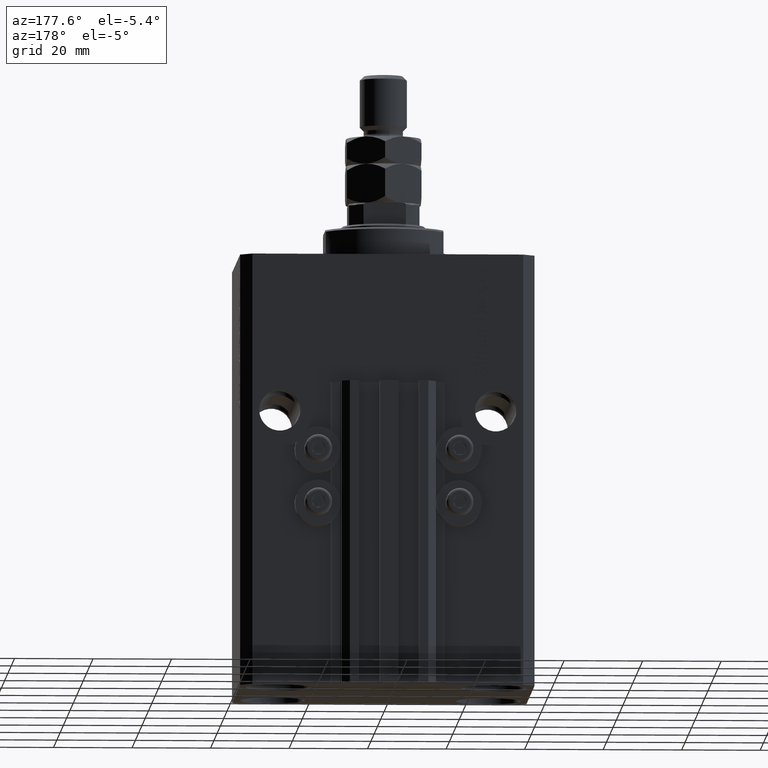
[diagram: clean part render]
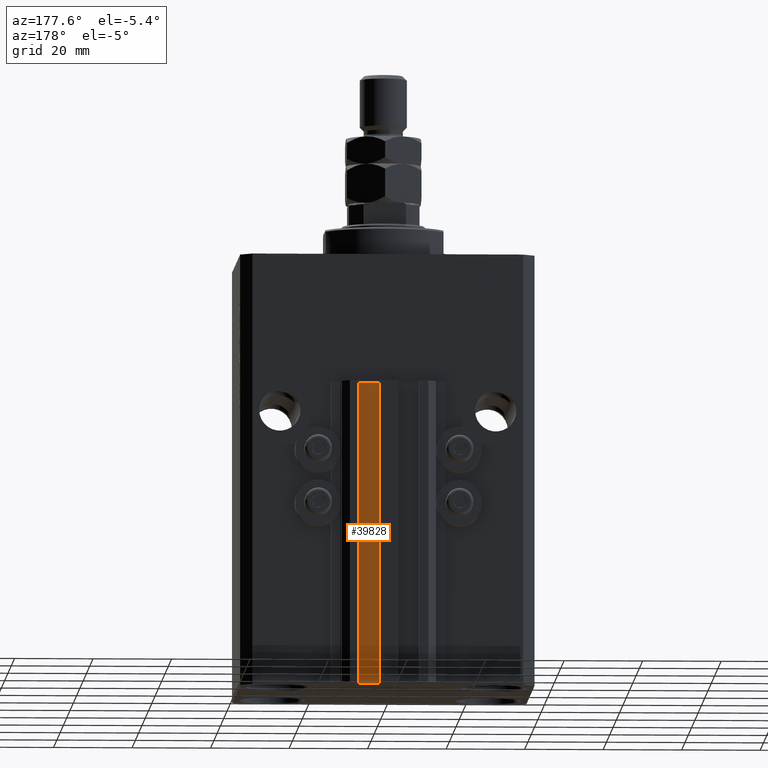
[diagram: same view with one face highlighted and labeled with its STEP entity id]
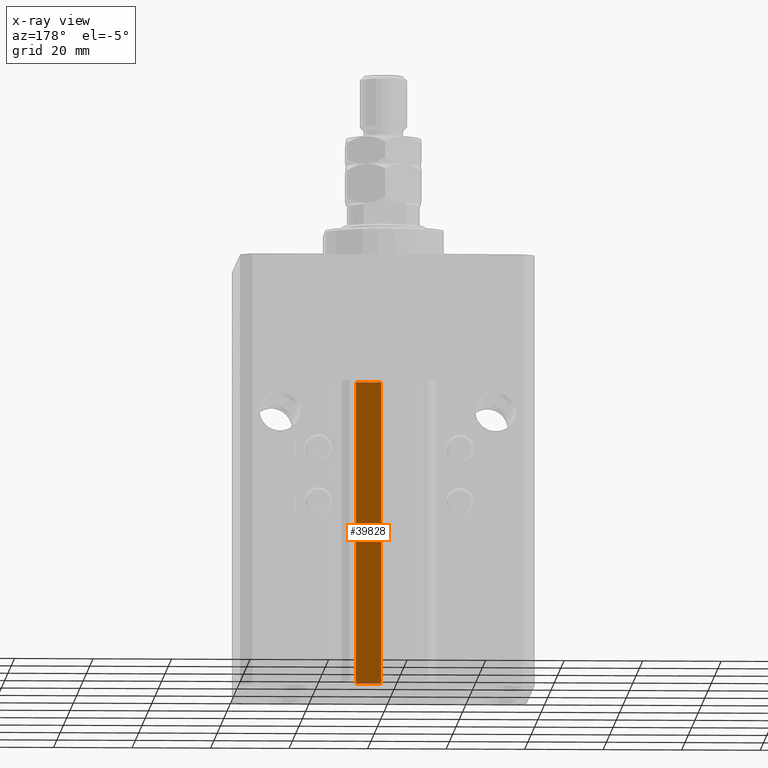
[diagram: x-ray of the same camera — body ghosted, the highlighted face saturated]
A machine part, auxiliary view. The second image highlights one B-rep face of the part: STEP entity #39828.
The next image is the same camera in x-ray: the body ghosted, the highlighted face saturated — about 0% of this face is hidden behind the body in this view.
In plain terms, the highlighted planar face has unit normal (-0, 1, 0).
Its self-contained STEP definition (entity closure, byte-faithful):
#187 = CARTESIAN_POINT ( 'NONE',  ( 1.800000000000000933, 29.50000000000000000, -110.0000000000000000 ) ) ;
#1239 = DIRECTION ( 'NONE',  ( -1.000000000000000000, -1.084202172485504828E-15, 0.000000000000000000 ) ) ;
#1263 = LINE ( 'NONE', #11355, #17854 ) ;
#3224 = PLANE ( 'NONE',  #31581 ) ;
#3971 = VERTEX_POINT ( 'NONE', #187 ) ;
#4035 = DIRECTION ( 'NONE',  ( -1.000000000000000000, -1.084202172485504828E-15, 0.000000000000000000 ) ) ;
#5115 = LINE ( 'NONE', #8774, #36321 ) ;
#6844 = CARTESIAN_POINT ( 'NONE',  ( 8.199999999999999289, 29.50000000000000711, -33.00000000000000000 ) ) ;
#7229 = CARTESIAN_POINT ( 'NONE',  ( 8.199999999999999289, 29.50000000000000711, -110.0000000000000000 ) ) ;
#8488 = CARTESIAN_POINT ( 'NONE',  ( 1.800000000000000933, 29.50000000000000000, -110.0000000000000000 ) ) ;
#8513 = ORIENTED_EDGE ( 'NONE', *, *, #24034, .F. ) ;
#8704 = CARTESIAN_POINT ( 'NONE',  ( 8.199999999999999289, 29.50000000000000711, -110.0000000000000000 ) ) ;
#8774 = CARTESIAN_POINT ( 'NONE',  ( 8.199999999999999289, 29.50000000000000711, -110.0000000000000000 ) ) ;
#11355 = CARTESIAN_POINT ( 'NONE',  ( 8.199999999999999289, 29.50000000000000711, -33.00000000000000000 ) ) ;
#12188 = VERTEX_POINT ( 'NONE', #7229 ) ;
#12581 = EDGE_LOOP ( 'NONE', ( #8513, #31021, #14245, #22119 ) ) ;
#14245 = ORIENTED_EDGE ( 'NONE', *, *, #47992, .T. ) ;
#15005 = EDGE_CURVE ( 'NONE', #3971, #36146, #22978, .T. ) ;
#17854 = VECTOR ( 'NONE', #4035, 1000.000000000000000 ) ;
#19978 = LINE ( 'NONE', #8704, #21099 ) ;
#20823 = VECTOR ( 'NONE', #37878, 1000.000000000000000 ) ;
#21099 = VECTOR ( 'NONE', #23667, 1000.000000000000000 ) ;
#22119 = ORIENTED_EDGE ( 'NONE', *, *, #15005, .T. ) ;
#22978 = LINE ( 'NONE', #8488, #20823 ) ;
#23667 = DIRECTION ( 'NONE',  ( -1.000000000000000000, -1.084202172485504828E-15, 0.000000000000000000 ) ) ;
#24034 = EDGE_CURVE ( 'NONE', #32044, #36146, #1263, .T. ) ;
#29389 = CARTESIAN_POINT ( 'NONE',  ( 8.199999999999999289, 29.50000000000000711, -110.0000000000000000 ) ) ;
#31021 = ORIENTED_EDGE ( 'NONE', *, *, #40881, .F. ) ;
#31559 = DIRECTION ( 'NONE',  ( 0.000000000000000000, 0.000000000000000000, 1.000000000000000000 ) ) ;
#31581 = AXIS2_PLACEMENT_3D ( 'NONE', #29389, #44309, #1239 ) ;
#32044 = VERTEX_POINT ( 'NONE', #6844 ) ;
#33969 = CARTESIAN_POINT ( 'NONE',  ( 1.800000000000000933, 29.50000000000000000, -33.00000000000000000 ) ) ;
#36146 = VERTEX_POINT ( 'NONE', #33969 ) ;
#36321 = VECTOR ( 'NONE', #31559, 1000.000000000000000 ) ;
#36743 = FACE_OUTER_BOUND ( 'NONE', #12581, .T. ) ;
#37878 = DIRECTION ( 'NONE',  ( 0.000000000000000000, 0.000000000000000000, 1.000000000000000000 ) ) ;
#39828 = ADVANCED_FACE ( 'NONE', ( #36743 ), #3224, .T. ) ;
#40881 = EDGE_CURVE ( 'NONE', #12188, #32044, #5115, .T. ) ;
#44309 = DIRECTION ( 'NONE',  ( -1.084202172485504828E-15, 1.000000000000000000, 0.000000000000000000 ) ) ;
#47992 = EDGE_CURVE ( 'NONE', #12188, #3971, #19978, .T. ) ;